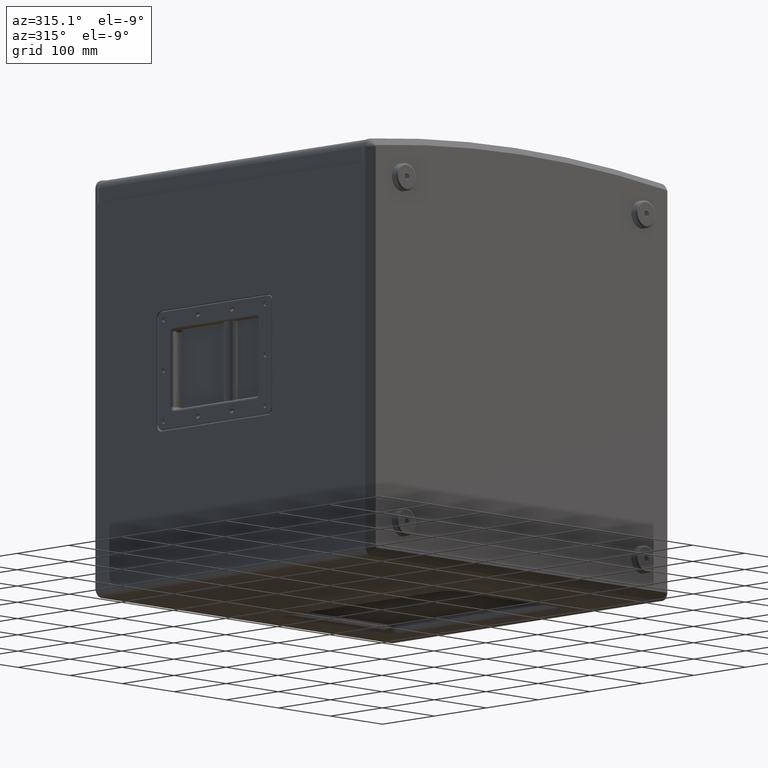
[diagram: clean part render]
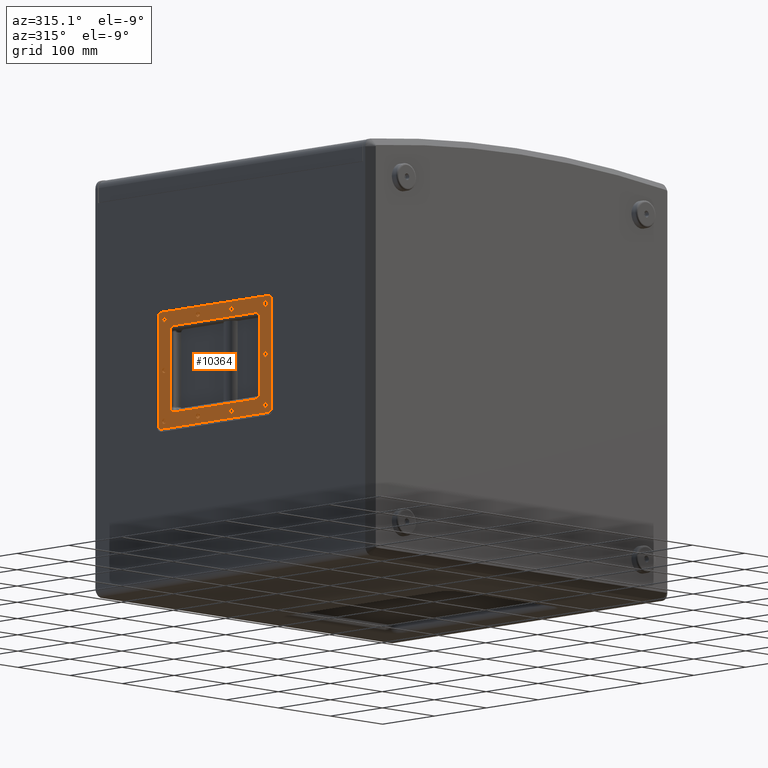
[diagram: same view with one face highlighted and labeled with its STEP entity id]
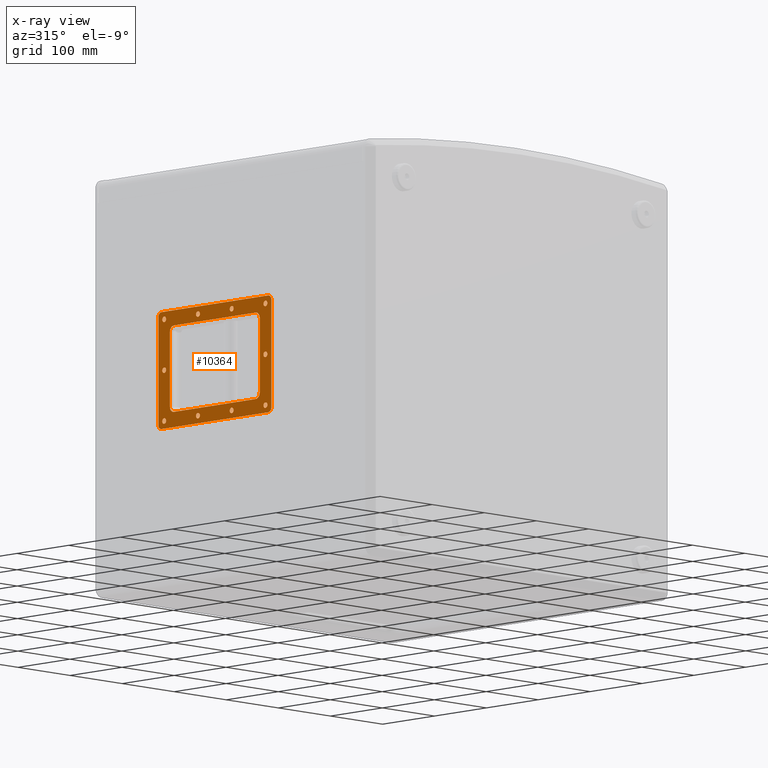
[diagram: x-ray of the same camera — body ghosted, the highlighted face saturated]
A machine part, auxiliary view. The second image highlights one B-rep face of the part: STEP entity #10364.
The next image is the same camera in x-ray: the body ghosted, the highlighted face saturated — about 0% of this face is hidden behind the body in this view.
In plain terms, the highlighted planar face has unit normal (-1, 0, 0).
Its self-contained STEP definition (entity closure, byte-faithful):
#211 = CIRCLE ( 'NONE', #23927, 3.750000000000058620 ) ;
#403 = ORIENTED_EDGE ( 'NONE', *, *, #12538, .T. ) ;
#418 = FACE_BOUND ( 'NONE', #37160, .T. ) ;
#508 = EDGE_LOOP ( 'NONE', ( #35665, #2250 ) ) ;
#536 = ORIENTED_EDGE ( 'NONE', *, *, #16903, .T. ) ;
#586 = VERTEX_POINT ( 'NONE', #39665 ) ;
#722 = DIRECTION ( 'NONE',  ( 1.000000000000000000, -0.0000000000000000000, -0.0000000000000000000 ) ) ;
#898 = CIRCLE ( 'NONE', #13058, 6.499999999999992006 ) ;
#1053 = VERTEX_POINT ( 'NONE', #38512 ) ;
#1125 = VERTEX_POINT ( 'NONE', #25715 ) ;
#1208 = EDGE_LOOP ( 'NONE', ( #35267, #11306 ) ) ;
#1553 = CARTESIAN_POINT ( 'NONE',  ( -290.0000000000000568, 62.50000000000002842, 70.00000000000001421 ) ) ;
#1771 = ORIENTED_EDGE ( 'NONE', *, *, #10657, .T. ) ;
#2107 = DIRECTION ( 'NONE',  ( 0.0000000000000000000, 0.0000000000000000000, 1.000000000000000000 ) ) ;
#2190 = AXIS2_PLACEMENT_3D ( 'NONE', #10365, #7200, #20508 ) ;
#2250 = ORIENTED_EDGE ( 'NONE', *, *, #32462, .T. ) ;
#2263 = EDGE_CURVE ( 'NONE', #27710, #7229, #898, .T. ) ;
#2310 = CARTESIAN_POINT ( 'NONE',  ( -290.0000000000000568, 127.5000000000000284, -5.970153145843347150E-15 ) ) ;
#2323 = CARTESIAN_POINT ( 'NONE',  ( -290.0000000000000568, 62.50000000000002842, 66.24999999999997158 ) ) ;
#2554 = EDGE_CURVE ( 'NONE', #38324, #22013, #29662, .T. ) ;
#2602 = AXIS2_PLACEMENT_3D ( 'NONE', #35365, #31738, #32161 ) ;
#2633 = EDGE_CURVE ( 'NONE', #16994, #8708, #39189, .T. ) ;
#3073 = DIRECTION ( 'NONE',  ( 1.000000000000000000, -0.0000000000000000000, -0.0000000000000000000 ) ) ;
#3128 = CARTESIAN_POINT ( 'NONE',  ( -290.0000000000000568, -67.49999999999997158, 70.00000000000001421 ) ) ;
#3223 = DIRECTION ( 'NONE',  ( 1.000000000000000000, -0.0000000000000000000, -0.0000000000000000000 ) ) ;
#3282 = CIRCLE ( 'NONE', #18846, 8.000000000000000000 ) ;
#3341 = CIRCLE ( 'NONE', #41347, 3.750000000000031086 ) ;
#3357 = DIRECTION ( 'NONE',  ( 0.0000000000000000000, 0.0000000000000000000, 1.000000000000000000 ) ) ;
#3898 = EDGE_LOOP ( 'NONE', ( #25933, #34236 ) ) ;
#4037 = DIRECTION ( 'NONE',  ( 0.0000000000000000000, 0.0000000000000000000, 1.000000000000000000 ) ) ;
#4294 = VERTEX_POINT ( 'NONE', #19420 ) ;
#4379 = EDGE_CURVE ( 'NONE', #4294, #24191, #3341, .T. ) ;
#4487 = VECTOR ( 'NONE', #36305, 1000.000000000000000 ) ;
#4746 = EDGE_CURVE ( 'NONE', #17588, #20660, #3282, .T. ) ;
#4914 = CIRCLE ( 'NONE', #40852, 3.750000000000058620 ) ;
#4932 = CARTESIAN_POINT ( 'NONE',  ( -290.0000000000000568, 108.5000000000000426, -59.50000000000000000 ) ) ;
#4935 = CIRCLE ( 'NONE', #7652, 8.000000000000000000 ) ;
#5082 = DIRECTION ( 'NONE',  ( 0.0000000000000000000, 0.0000000000000000000, 1.000000000000000000 ) ) ;
#5178 = CARTESIAN_POINT ( 'NONE',  ( -290.0000000000000568, -48.49999999999995026, 59.50000000000000000 ) ) ;
#5219 = DIRECTION ( 'NONE',  ( 0.0000000000000000000, 0.0000000000000000000, 1.000000000000000000 ) ) ;
#5348 = DIRECTION ( 'NONE',  ( 0.0000000000000000000, 0.0000000000000000000, 1.000000000000000000 ) ) ;
#5425 = VERTEX_POINT ( 'NONE', #33462 ) ;
#5856 = EDGE_CURVE ( 'NONE', #14907, #6458, #21559, .T. ) ;
#5863 = EDGE_LOOP ( 'NONE', ( #536, #17411 ) ) ;
#6153 = CARTESIAN_POINT ( 'NONE',  ( -290.0000000000000568, 138.9999999999999716, -74.00000000000001421 ) ) ;
#6174 = FACE_BOUND ( 'NONE', #12285, .T. ) ;
#6219 = CARTESIAN_POINT ( 'NONE',  ( -290.0000000000000568, -72.49999999999995737, 80.50000000000000000 ) ) ;
#6242 = CARTESIAN_POINT ( 'NONE',  ( -290.0000000000000568, -67.49999999999997158, -70.00000000000001421 ) ) ;
#6248 = DIRECTION ( 'NONE',  ( 0.0000000000000000000, 0.0000000000000000000, 1.000000000000000000 ) ) ;
#6261 = ORIENTED_EDGE ( 'NONE', *, *, #16700, .T. ) ;
#6386 = FACE_BOUND ( 'NONE', #17727, .T. ) ;
#6458 = VERTEX_POINT ( 'NONE', #18154 ) ;
#6548 = CARTESIAN_POINT ( 'NONE',  ( -290.0000000000000568, 30.00000000000002132, -59.50000000000000000 ) ) ;
#6842 = CARTESIAN_POINT ( 'NONE',  ( -290.0000000000000568, -67.49999999999997158, -70.00000000000001421 ) ) ;
#7200 = DIRECTION ( 'NONE',  ( 1.000000000000000000, -0.0000000000000000000, -0.0000000000000000000 ) ) ;
#7229 = VERTEX_POINT ( 'NONE', #6219 ) ;
#7244 = VERTEX_POINT ( 'NONE', #28704 ) ;
#7255 = CARTESIAN_POINT ( 'NONE',  ( -290.0000000000000568, -72.49999999999995737, 74.00000000000001421 ) ) ;
#7258 = CARTESIAN_POINT ( 'NONE',  ( -290.0000000000000568, 127.5000000000000284, -70.00000000000001421 ) ) ;
#7286 = CIRCLE ( 'NONE', #23505, 8.000000000000000000 ) ;
#7320 = CARTESIAN_POINT ( 'NONE',  ( -290.0000000000000568, -72.49999999999995737, -80.49999999999998579 ) ) ;
#7514 = DIRECTION ( 'NONE',  ( 1.000000000000000000, -0.0000000000000000000, -0.0000000000000000000 ) ) ;
#7574 = ORIENTED_EDGE ( 'NONE', *, *, #35023, .T. ) ;
#7652 = AXIS2_PLACEMENT_3D ( 'NONE', #7707, #29936, #33582 ) ;
#7707 = CARTESIAN_POINT ( 'NONE',  ( -290.0000000000000568, -48.49999999999995026, -51.50000000000000711 ) ) ;
#7926 = CIRCLE ( 'NONE', #13314, 3.750000000000031086 ) ;
#8003 = DIRECTION ( 'NONE',  ( 1.000000000000000000, -0.0000000000000000000, -0.0000000000000000000 ) ) ;
#8050 = AXIS2_PLACEMENT_3D ( 'NONE', #20492, #24561, #2107 ) ;
#8375 = EDGE_CURVE ( 'NONE', #31284, #16897, #30999, .T. ) ;
#8446 = DIRECTION ( 'NONE',  ( 0.0000000000000000000, 0.0000000000000000000, 1.000000000000000000 ) ) ;
#8708 = VERTEX_POINT ( 'NONE', #28173 ) ;
#8759 = LINE ( 'NONE', #5178, #18589 ) ;
#8808 = CARTESIAN_POINT ( 'NONE',  ( -290.0000000000000568, 62.50000000000002842, -73.75000000000007105 ) ) ;
#9078 = CARTESIAN_POINT ( 'NONE',  ( -290.0000000000000568, -2.499999999999981348, 70.00000000000001421 ) ) ;
#9154 = PLANE ( 'NONE',  #10295 ) ;
#9190 = CARTESIAN_POINT ( 'NONE',  ( -290.0000000000000568, 62.50000000000002842, -70.00000000000001421 ) ) ;
#9323 = EDGE_CURVE ( 'NONE', #13210, #17825, #37963, .T. ) ;
#9348 = CARTESIAN_POINT ( 'NONE',  ( -290.0000000000000568, 127.5000000000000284, 70.00000000000001421 ) ) ;
#9849 = DIRECTION ( 'NONE',  ( 0.0000000000000000000, 0.0000000000000000000, 1.000000000000000000 ) ) ;
#9955 = FACE_BOUND ( 'NONE', #1208, .T. ) ;
#10295 = AXIS2_PLACEMENT_3D ( 'NONE', #16704, #30092, #4037 ) ;
#10364 = ADVANCED_FACE ( 'NONE', ( #42072, #35252, #22241, #25660, #9955, #35673, #18867, #6386, #6174, #31839, #19260, #418 ), #9154, .T. ) ;
#10365 = CARTESIAN_POINT ( 'NONE',  ( -290.0000000000000568, -67.49999999999997158, -5.970153145843347150E-15 ) ) ;
#10448 = ORIENTED_EDGE ( 'NONE', *, *, #22637, .T. ) ;
#10477 = DIRECTION ( 'NONE',  ( 0.0000000000000000000, 0.0000000000000000000, 1.000000000000000000 ) ) ;
#10601 = VERTEX_POINT ( 'NONE', #29727 ) ;
#10657 = EDGE_CURVE ( 'NONE', #34723, #16994, #29970, .T. ) ;
#10851 = DIRECTION ( 'NONE',  ( 0.0000000000000000000, 0.0000000000000000000, 1.000000000000000000 ) ) ;
#11306 = ORIENTED_EDGE ( 'NONE', *, *, #25426, .T. ) ;
#11496 = CARTESIAN_POINT ( 'NONE',  ( -290.0000000000000568, 108.5000000000000426, -51.50000000000000711 ) ) ;
#11746 = DIRECTION ( 'NONE',  ( 0.0000000000000000000, -1.000000000000000000, 0.0000000000000000000 ) ) ;
#12285 = EDGE_LOOP ( 'NONE', ( #31003, #32738 ) ) ;
#12340 = ORIENTED_EDGE ( 'NONE', *, *, #8375, .T. ) ;
#12346 = AXIS2_PLACEMENT_3D ( 'NONE', #38187, #41595, #5082 ) ;
#12456 = DIRECTION ( 'NONE',  ( 0.0000000000000000000, 0.0000000000000000000, 1.000000000000000000 ) ) ;
#12462 = CIRCLE ( 'NONE', #41663, 8.000000000000000000 ) ;
#12538 = EDGE_CURVE ( 'NONE', #7244, #31284, #12462, .T. ) ;
#12687 = LINE ( 'NONE', #6548, #26501 ) ;
#12896 = DIRECTION ( 'NONE',  ( 0.0000000000000000000, 0.0000000000000000000, -1.000000000000000000 ) ) ;
#13058 = AXIS2_PLACEMENT_3D ( 'NONE', #7255, #29506, #10851 ) ;
#13164 = CARTESIAN_POINT ( 'NONE',  ( -290.0000000000000568, 62.50000000000002842, 70.00000000000001421 ) ) ;
#13210 = VERTEX_POINT ( 'NONE', #8808 ) ;
#13314 = AXIS2_PLACEMENT_3D ( 'NONE', #7258, #13602, #29511 ) ;
#13399 = ORIENTED_EDGE ( 'NONE', *, *, #4746, .T. ) ;
#13602 = DIRECTION ( 'NONE',  ( 1.000000000000000000, -0.0000000000000000000, -0.0000000000000000000 ) ) ;
#13615 = ORIENTED_EDGE ( 'NONE', *, *, #21747, .T. ) ;
#13669 = DIRECTION ( 'NONE',  ( 0.0000000000000000000, -1.000000000000000000, 0.0000000000000000000 ) ) ;
#13674 = CARTESIAN_POINT ( 'NONE',  ( -290.0000000000000568, -2.499999999999980904, -73.75000000000007105 ) ) ;
#13749 = VERTEX_POINT ( 'NONE', #19092 ) ;
#13802 = DIRECTION ( 'NONE',  ( 0.0000000000000000000, 0.0000000000000000000, 1.000000000000000000 ) ) ;
#14371 = CIRCLE ( 'NONE', #12346, 3.750000000000031086 ) ;
#14535 = CARTESIAN_POINT ( 'NONE',  ( -290.0000000000000568, 127.5000000000000284, 70.00000000000001421 ) ) ;
#14568 = CARTESIAN_POINT ( 'NONE',  ( -290.0000000000000568, -67.49999999999997158, 70.00000000000001421 ) ) ;
#14595 = AXIS2_PLACEMENT_3D ( 'NONE', #36268, #19414, #3357 ) ;
#14895 = CARTESIAN_POINT ( 'NONE',  ( -290.0000000000000568, -56.49999999999995737, 51.50000000000001421 ) ) ;
#14907 = VERTEX_POINT ( 'NONE', #31988 ) ;
#15138 = CARTESIAN_POINT ( 'NONE',  ( -290.0000000000000568, -2.499999999999980904, 66.24999999999997158 ) ) ;
#15155 = DIRECTION ( 'NONE',  ( 0.0000000000000000000, 0.0000000000000000000, 1.000000000000000000 ) ) ;
#15357 = CARTESIAN_POINT ( 'NONE',  ( -290.0000000000000568, 62.50000000000002842, -70.00000000000001421 ) ) ;
#15400 = CARTESIAN_POINT ( 'NONE',  ( -290.0000000000000568, 108.5000000000000426, 51.50000000000001421 ) ) ;
#15853 = EDGE_CURVE ( 'NONE', #17825, #13210, #29748, .T. ) ;
#15913 = CARTESIAN_POINT ( 'NONE',  ( -290.0000000000000568, -48.49999999999995026, 51.50000000000001421 ) ) ;
#16003 = DIRECTION ( 'NONE',  ( 0.0000000000000000000, 0.0000000000000000000, 1.000000000000000000 ) ) ;
#16568 = AXIS2_PLACEMENT_3D ( 'NONE', #17457, #7514, #36192 ) ;
#16700 = EDGE_CURVE ( 'NONE', #10601, #17588, #12687, .T. ) ;
#16704 = CARTESIAN_POINT ( 'NONE',  ( -290.0000000000000568, 30.00000000000002132, 0.0000000000000000000 ) ) ;
#16897 = VERTEX_POINT ( 'NONE', #20071 ) ;
#16903 = EDGE_CURVE ( 'NONE', #13749, #38502, #25194, .T. ) ;
#16994 = VERTEX_POINT ( 'NONE', #34140 ) ;
#17101 = CARTESIAN_POINT ( 'NONE',  ( -290.0000000000000568, 116.5000000000000426, 51.50000000000001421 ) ) ;
#17411 = ORIENTED_EDGE ( 'NONE', *, *, #34509, .T. ) ;
#17421 = DIRECTION ( 'NONE',  ( 0.0000000000000000000, 0.0000000000000000000, 1.000000000000000000 ) ) ;
#17457 = CARTESIAN_POINT ( 'NONE',  ( -290.0000000000000568, 127.5000000000000284, -70.00000000000001421 ) ) ;
#17588 = VERTEX_POINT ( 'NONE', #4932 ) ;
#17727 = EDGE_LOOP ( 'NONE', ( #28728, #38914 ) ) ;
#17797 = CIRCLE ( 'NONE', #19780, 3.750000000000031086 ) ;
#17825 = VERTEX_POINT ( 'NONE', #32050 ) ;
#17884 = CARTESIAN_POINT ( 'NONE',  ( -290.0000000000000568, 127.5000000000000284, 66.24999999999998579 ) ) ;
#18139 = AXIS2_PLACEMENT_3D ( 'NONE', #28738, #22751, #9849 ) ;
#18154 = CARTESIAN_POINT ( 'NONE',  ( -290.0000000000000568, -67.49999999999997158, -73.75000000000005684 ) ) ;
#18384 = VECTOR ( 'NONE', #36473, 1000.000000000000000 ) ;
#18386 = DIRECTION ( 'NONE',  ( 1.000000000000000000, -0.0000000000000000000, -0.0000000000000000000 ) ) ;
#18589 = VECTOR ( 'NONE', #11746, 1000.000000000000000 ) ;
#18597 = AXIS2_PLACEMENT_3D ( 'NONE', #9348, #29057, #41662 ) ;
#18843 = AXIS2_PLACEMENT_3D ( 'NONE', #6842, #38716, #19112 ) ;
#18846 = AXIS2_PLACEMENT_3D ( 'NONE', #11496, #31433, #5348 ) ;
#18867 = FACE_BOUND ( 'NONE', #34694, .T. ) ;
#19092 = CARTESIAN_POINT ( 'NONE',  ( -290.0000000000000568, -67.49999999999997158, 3.750000000000024869 ) ) ;
#19112 = DIRECTION ( 'NONE',  ( 0.0000000000000000000, 0.0000000000000000000, 1.000000000000000000 ) ) ;
#19260 = FACE_BOUND ( 'NONE', #5863, .T. ) ;
#19305 = CIRCLE ( 'NONE', #14595, 6.499999999999977796 ) ;
#19414 = DIRECTION ( 'NONE',  ( -1.000000000000000000, 0.0000000000000000000, 0.0000000000000000000 ) ) ;
#19420 = CARTESIAN_POINT ( 'NONE',  ( -290.0000000000000568, 127.5000000000000284, -3.750000000000037303 ) ) ;
#19461 = VECTOR ( 'NONE', #24187, 1000.000000000000000 ) ;
#19524 = DIRECTION ( 'NONE',  ( 0.0000000000000000000, 0.0000000000000000000, 1.000000000000000000 ) ) ;
#19562 = AXIS2_PLACEMENT_3D ( 'NONE', #9190, #22087, #22286 ) ;
#19696 = DIRECTION ( 'NONE',  ( 1.000000000000000000, -0.0000000000000000000, -0.0000000000000000000 ) ) ;
#19780 = AXIS2_PLACEMENT_3D ( 'NONE', #14535, #31306, #5219 ) ;
#19913 = CIRCLE ( 'NONE', #18597, 3.750000000000031086 ) ;
#20021 = EDGE_CURVE ( 'NONE', #22013, #38324, #40111, .T. ) ;
#20071 = CARTESIAN_POINT ( 'NONE',  ( -290.0000000000000568, -56.49999999999995737, -51.50000000000000711 ) ) ;
#20374 = EDGE_CURVE ( 'NONE', #1053, #24657, #27047, .T. ) ;
#20386 = VERTEX_POINT ( 'NONE', #2323 ) ;
#20462 = CARTESIAN_POINT ( 'NONE',  ( -290.0000000000000568, 127.5000000000000284, 3.750000000000024869 ) ) ;
#20492 = CARTESIAN_POINT ( 'NONE',  ( -290.0000000000000568, -72.49999999999995737, -74.00000000000001421 ) ) ;
#20508 = DIRECTION ( 'NONE',  ( 0.0000000000000000000, 0.0000000000000000000, 1.000000000000000000 ) ) ;
#20617 = CARTESIAN_POINT ( 'NONE',  ( -290.0000000000000568, 62.50000000000002842, 73.75000000000007105 ) ) ;
#20660 = VERTEX_POINT ( 'NONE', #20869 ) ;
#20778 = CARTESIAN_POINT ( 'NONE',  ( -290.0000000000000568, 132.5000000000000000, -74.00000000000001421 ) ) ;
#20869 = CARTESIAN_POINT ( 'NONE',  ( -290.0000000000000568, 116.5000000000000426, -51.50000000000000711 ) ) ;
#21423 = CARTESIAN_POINT ( 'NONE',  ( -290.0000000000000568, 127.5000000000000284, 73.75000000000005684 ) ) ;
#21538 = VECTOR ( 'NONE', #13669, 1000.000000000000000 ) ;
#21559 = CIRCLE ( 'NONE', #18843, 3.750000000000031086 ) ;
#21747 = EDGE_CURVE ( 'NONE', #20660, #1125, #33473, .T. ) ;
#22013 = VERTEX_POINT ( 'NONE', #13674 ) ;
#22087 = DIRECTION ( 'NONE',  ( 1.000000000000000000, -0.0000000000000000000, -0.0000000000000000000 ) ) ;
#22210 = VERTEX_POINT ( 'NONE', #41521 ) ;
#22241 = FACE_BOUND ( 'NONE', #3898, .T. ) ;
#22280 = ORIENTED_EDGE ( 'NONE', *, *, #32067, .T. ) ;
#22286 = DIRECTION ( 'NONE',  ( 0.0000000000000000000, 0.0000000000000000000, 1.000000000000000000 ) ) ;
#22327 = EDGE_CURVE ( 'NONE', #16897, #10601, #4935, .T. ) ;
#22637 = EDGE_CURVE ( 'NONE', #22210, #34723, #42039, .T. ) ;
#22751 = DIRECTION ( 'NONE',  ( 1.000000000000000000, -0.0000000000000000000, -0.0000000000000000000 ) ) ;
#22947 = EDGE_CURVE ( 'NONE', #26919, #33333, #25289, .T. ) ;
#23124 = VERTEX_POINT ( 'NONE', #33431 ) ;
#23505 = AXIS2_PLACEMENT_3D ( 'NONE', #15400, #18386, #27728 ) ;
#23544 = ORIENTED_EDGE ( 'NONE', *, *, #28248, .T. ) ;
#23562 = ORIENTED_EDGE ( 'NONE', *, *, #2263, .T. ) ;
#23588 = DIRECTION ( 'NONE',  ( 1.000000000000000000, -0.0000000000000000000, -0.0000000000000000000 ) ) ;
#23669 = CARTESIAN_POINT ( 'NONE',  ( -290.0000000000000568, -78.99999999999995737, 74.00000000000001421 ) ) ;
#23927 = AXIS2_PLACEMENT_3D ( 'NONE', #1553, #23588, #17421 ) ;
#24187 = DIRECTION ( 'NONE',  ( -0.0000000000000000000, -0.0000000000000000000, -1.000000000000000000 ) ) ;
#24191 = VERTEX_POINT ( 'NONE', #20462 ) ;
#24198 = EDGE_CURVE ( 'NONE', #33333, #26919, #41682, .T. ) ;
#24202 = ORIENTED_EDGE ( 'NONE', *, *, #39660, .T. ) ;
#24453 = CARTESIAN_POINT ( 'NONE',  ( -290.0000000000000568, 108.5000000000000426, 59.50000000000001421 ) ) ;
#24561 = DIRECTION ( 'NONE',  ( -1.000000000000000000, 0.0000000000000000000, 0.0000000000000000000 ) ) ;
#24657 = VERTEX_POINT ( 'NONE', #15138 ) ;
#24987 = EDGE_CURVE ( 'NONE', #23124, #22210, #19305, .T. ) ;
#25194 = CIRCLE ( 'NONE', #2190, 3.750000000000031086 ) ;
#25254 = VECTOR ( 'NONE', #6248, 1000.000000000000000 ) ;
#25289 = CIRCLE ( 'NONE', #31430, 3.750000000000031086 ) ;
#25335 = CARTESIAN_POINT ( 'NONE',  ( -290.0000000000000568, -78.99999999999995737, 0.0000000000000000000 ) ) ;
#25426 = EDGE_CURVE ( 'NONE', #6458, #14907, #25465, .T. ) ;
#25465 = CIRCLE ( 'NONE', #36350, 3.750000000000031086 ) ;
#25660 = FACE_BOUND ( 'NONE', #30651, .T. ) ;
#25697 = AXIS2_PLACEMENT_3D ( 'NONE', #15357, #41320, #15155 ) ;
#25715 = CARTESIAN_POINT ( 'NONE',  ( -290.0000000000000568, 116.5000000000000426, 51.50000000000001421 ) ) ;
#25809 = CARTESIAN_POINT ( 'NONE',  ( -290.0000000000000568, -67.49999999999997158, -3.750000000000037303 ) ) ;
#25894 = DIRECTION ( 'NONE',  ( 0.0000000000000000000, 0.0000000000000000000, 1.000000000000000000 ) ) ;
#25933 = ORIENTED_EDGE ( 'NONE', *, *, #38726, .T. ) ;
#26067 = CARTESIAN_POINT ( 'NONE',  ( -290.0000000000000568, 30.00000000000002132, 80.49999999999998579 ) ) ;
#26095 = DIRECTION ( 'NONE',  ( 0.0000000000000000000, 0.0000000000000000000, 1.000000000000000000 ) ) ;
#26501 = VECTOR ( 'NONE', #29413, 1000.000000000000000 ) ;
#26571 = VECTOR ( 'NONE', #12896, 1000.000000000000000 ) ;
#26919 = VERTEX_POINT ( 'NONE', #27940 ) ;
#27047 = CIRCLE ( 'NONE', #38040, 3.750000000000058620 ) ;
#27080 = VERTEX_POINT ( 'NONE', #41788 ) ;
#27493 = ORIENTED_EDGE ( 'NONE', *, *, #38815, .T. ) ;
#27710 = VERTEX_POINT ( 'NONE', #23669 ) ;
#27728 = DIRECTION ( 'NONE',  ( 0.0000000000000000000, 0.0000000000000000000, 1.000000000000000000 ) ) ;
#27940 = CARTESIAN_POINT ( 'NONE',  ( -290.0000000000000568, -67.49999999999997158, 66.24999999999998579 ) ) ;
#28173 = CARTESIAN_POINT ( 'NONE',  ( -290.0000000000000568, -72.49999999999995737, -80.49999999999998579 ) ) ;
#28248 = EDGE_CURVE ( 'NONE', #24191, #4294, #14371, .T. ) ;
#28448 = CARTESIAN_POINT ( 'NONE',  ( -290.0000000000000568, -2.499999999999981348, -66.24999999999997158 ) ) ;
#28704 = CARTESIAN_POINT ( 'NONE',  ( -290.0000000000000568, -48.49999999999995026, 59.50000000000001421 ) ) ;
#28728 = ORIENTED_EDGE ( 'NONE', *, *, #20374, .T. ) ;
#28738 = CARTESIAN_POINT ( 'NONE',  ( -290.0000000000000568, -67.49999999999997158, -5.970153145843347150E-15 ) ) ;
#28768 = EDGE_CURVE ( 'NONE', #40687, #20386, #4914, .T. ) ;
#29057 = DIRECTION ( 'NONE',  ( 1.000000000000000000, -0.0000000000000000000, -0.0000000000000000000 ) ) ;
#29137 = LINE ( 'NONE', #25335, #25254 ) ;
#29413 = DIRECTION ( 'NONE',  ( -0.0000000000000000000, 1.000000000000000000, -0.0000000000000000000 ) ) ;
#29506 = DIRECTION ( 'NONE',  ( -1.000000000000000000, 0.0000000000000000000, 0.0000000000000000000 ) ) ;
#29511 = DIRECTION ( 'NONE',  ( 0.0000000000000000000, 0.0000000000000000000, 1.000000000000000000 ) ) ;
#29662 = CIRCLE ( 'NONE', #2602, 3.750000000000058620 ) ;
#29727 = CARTESIAN_POINT ( 'NONE',  ( -290.0000000000000568, -48.49999999999995026, -59.50000000000000000 ) ) ;
#29748 = CIRCLE ( 'NONE', #25697, 3.750000000000058620 ) ;
#29901 = ORIENTED_EDGE ( 'NONE', *, *, #20021, .T. ) ;
#29925 = DIRECTION ( 'NONE',  ( 0.0000000000000000000, 0.0000000000000000000, 1.000000000000000000 ) ) ;
#29936 = DIRECTION ( 'NONE',  ( 1.000000000000000000, -0.0000000000000000000, -0.0000000000000000000 ) ) ;
#29970 = CIRCLE ( 'NONE', #38198, 6.499999999999992006 ) ;
#30092 = DIRECTION ( 'NONE',  ( -1.000000000000000000, 0.0000000000000000000, 0.0000000000000000000 ) ) ;
#30378 = ORIENTED_EDGE ( 'NONE', *, *, #15853, .T. ) ;
#30651 = EDGE_LOOP ( 'NONE', ( #38416, #35297 ) ) ;
#30822 = ORIENTED_EDGE ( 'NONE', *, *, #2554, .T. ) ;
#30999 = LINE ( 'NONE', #37616, #19461 ) ;
#31003 = ORIENTED_EDGE ( 'NONE', *, *, #28768, .T. ) ;
#31284 = VERTEX_POINT ( 'NONE', #14895 ) ;
#31306 = DIRECTION ( 'NONE',  ( 1.000000000000000000, -0.0000000000000000000, -0.0000000000000000000 ) ) ;
#31383 = ORIENTED_EDGE ( 'NONE', *, *, #2633, .T. ) ;
#31392 = VERTEX_POINT ( 'NONE', #24453 ) ;
#31430 = AXIS2_PLACEMENT_3D ( 'NONE', #3128, #39004, #16003 ) ;
#31433 = DIRECTION ( 'NONE',  ( 1.000000000000000000, -0.0000000000000000000, -0.0000000000000000000 ) ) ;
#31529 = CIRCLE ( 'NONE', #16568, 3.750000000000031086 ) ;
#31704 = EDGE_CURVE ( 'NONE', #586, #5425, #31529, .T. ) ;
#31738 = DIRECTION ( 'NONE',  ( 1.000000000000000000, -0.0000000000000000000, -0.0000000000000000000 ) ) ;
#31833 = ORIENTED_EDGE ( 'NONE', *, *, #22327, .T. ) ;
#31839 = FACE_BOUND ( 'NONE', #37757, .T. ) ;
#31988 = CARTESIAN_POINT ( 'NONE',  ( -290.0000000000000568, -67.49999999999997158, -66.24999999999998579 ) ) ;
#32050 = CARTESIAN_POINT ( 'NONE',  ( -290.0000000000000568, 62.50000000000002842, -66.24999999999997158 ) ) ;
#32067 = EDGE_CURVE ( 'NONE', #7229, #23124, #35883, .T. ) ;
#32161 = DIRECTION ( 'NONE',  ( 0.0000000000000000000, 0.0000000000000000000, 1.000000000000000000 ) ) ;
#32462 = EDGE_CURVE ( 'NONE', #5425, #586, #7926, .T. ) ;
#32622 = CARTESIAN_POINT ( 'NONE',  ( -290.0000000000000568, 138.9999999999999716, -74.00000000000001421 ) ) ;
#32707 = ORIENTED_EDGE ( 'NONE', *, *, #9323, .T. ) ;
#32738 = ORIENTED_EDGE ( 'NONE', *, *, #38224, .T. ) ;
#32803 = AXIS2_PLACEMENT_3D ( 'NONE', #14568, #8003, #33029 ) ;
#33029 = DIRECTION ( 'NONE',  ( 0.0000000000000000000, 0.0000000000000000000, 1.000000000000000000 ) ) ;
#33228 = CIRCLE ( 'NONE', #37331, 3.750000000000058620 ) ;
#33333 = VERTEX_POINT ( 'NONE', #41968 ) ;
#33431 = CARTESIAN_POINT ( 'NONE',  ( -290.0000000000000568, 132.5000000000000000, 80.49999999999998579 ) ) ;
#33462 = CARTESIAN_POINT ( 'NONE',  ( -290.0000000000000568, 127.5000000000000284, -73.75000000000005684 ) ) ;
#33473 = LINE ( 'NONE', #17101, #18384 ) ;
#33582 = DIRECTION ( 'NONE',  ( 0.0000000000000000000, 0.0000000000000000000, 1.000000000000000000 ) ) ;
#33608 = CARTESIAN_POINT ( 'NONE',  ( -290.0000000000000568, -2.499999999999981348, 70.00000000000001421 ) ) ;
#33776 = DIRECTION ( 'NONE',  ( -1.000000000000000000, 0.0000000000000000000, 0.0000000000000000000 ) ) ;
#34140 = CARTESIAN_POINT ( 'NONE',  ( -290.0000000000000568, 132.5000000000000000, -80.50000000000000000 ) ) ;
#34155 = EDGE_CURVE ( 'NONE', #1125, #31392, #7286, .T. ) ;
#34236 = ORIENTED_EDGE ( 'NONE', *, *, #41865, .T. ) ;
#34509 = EDGE_CURVE ( 'NONE', #38502, #13749, #36484, .T. ) ;
#34694 = EDGE_LOOP ( 'NONE', ( #30822, #29901 ) ) ;
#34723 = VERTEX_POINT ( 'NONE', #6153 ) ;
#35023 = EDGE_CURVE ( 'NONE', #8708, #27080, #36549, .T. ) ;
#35252 = FACE_BOUND ( 'NONE', #508, .T. ) ;
#35267 = ORIENTED_EDGE ( 'NONE', *, *, #5856, .T. ) ;
#35297 = ORIENTED_EDGE ( 'NONE', *, *, #22947, .T. ) ;
#35365 = CARTESIAN_POINT ( 'NONE',  ( -290.0000000000000568, -2.499999999999981348, -70.00000000000001421 ) ) ;
#35665 = ORIENTED_EDGE ( 'NONE', *, *, #31704, .T. ) ;
#35673 = FACE_BOUND ( 'NONE', #39598, .T. ) ;
#35883 = LINE ( 'NONE', #26067, #4487 ) ;
#35923 = CARTESIAN_POINT ( 'NONE',  ( -290.0000000000000568, -2.499999999999981348, -70.00000000000001421 ) ) ;
#36192 = DIRECTION ( 'NONE',  ( 0.0000000000000000000, 0.0000000000000000000, 1.000000000000000000 ) ) ;
#36268 = CARTESIAN_POINT ( 'NONE',  ( -290.0000000000000568, 132.5000000000000000, 74.00000000000001421 ) ) ;
#36305 = DIRECTION ( 'NONE',  ( 0.0000000000000000000, 1.000000000000000000, 0.0000000000000000000 ) ) ;
#36350 = AXIS2_PLACEMENT_3D ( 'NONE', #6242, #3073, #19524 ) ;
#36473 = DIRECTION ( 'NONE',  ( 0.0000000000000000000, 0.0000000000000000000, 1.000000000000000000 ) ) ;
#36484 = CIRCLE ( 'NONE', #18139, 3.750000000000031086 ) ;
#36549 = CIRCLE ( 'NONE', #8050, 6.499999999999977796 ) ;
#36697 = EDGE_CURVE ( 'NONE', #24657, #1053, #33228, .T. ) ;
#37054 = ORIENTED_EDGE ( 'NONE', *, *, #4379, .T. ) ;
#37160 = EDGE_LOOP ( 'NONE', ( #40398, #24202, #403, #12340, #31833, #6261, #13399, #13615 ) ) ;
#37331 = AXIS2_PLACEMENT_3D ( 'NONE', #33608, #722, #10477 ) ;
#37616 = CARTESIAN_POINT ( 'NONE',  ( -290.0000000000000568, -56.49999999999995737, -51.50000000000000711 ) ) ;
#37668 = VERTEX_POINT ( 'NONE', #21423 ) ;
#37729 = ORIENTED_EDGE ( 'NONE', *, *, #24987, .T. ) ;
#37757 = EDGE_LOOP ( 'NONE', ( #23544, #37054 ) ) ;
#37963 = CIRCLE ( 'NONE', #19562, 3.750000000000058620 ) ;
#38040 = AXIS2_PLACEMENT_3D ( 'NONE', #9078, #38180, #12456 ) ;
#38063 = AXIS2_PLACEMENT_3D ( 'NONE', #35923, #19696, #13802 ) ;
#38180 = DIRECTION ( 'NONE',  ( 1.000000000000000000, -0.0000000000000000000, -0.0000000000000000000 ) ) ;
#38187 = CARTESIAN_POINT ( 'NONE',  ( -290.0000000000000568, 127.5000000000000284, -5.970153145843347150E-15 ) ) ;
#38198 = AXIS2_PLACEMENT_3D ( 'NONE', #20778, #33776, #29925 ) ;
#38224 = EDGE_CURVE ( 'NONE', #20386, #40687, #211, .T. ) ;
#38324 = VERTEX_POINT ( 'NONE', #28448 ) ;
#38416 = ORIENTED_EDGE ( 'NONE', *, *, #24198, .T. ) ;
#38502 = VERTEX_POINT ( 'NONE', #25809 ) ;
#38512 = CARTESIAN_POINT ( 'NONE',  ( -290.0000000000000568, -2.499999999999981348, 73.75000000000007105 ) ) ;
#38687 = DIRECTION ( 'NONE',  ( 1.000000000000000000, -0.0000000000000000000, -0.0000000000000000000 ) ) ;
#38716 = DIRECTION ( 'NONE',  ( 1.000000000000000000, -0.0000000000000000000, -0.0000000000000000000 ) ) ;
#38726 = EDGE_CURVE ( 'NONE', #37668, #41516, #17797, .T. ) ;
#38815 = EDGE_CURVE ( 'NONE', #27080, #27710, #29137, .T. ) ;
#38914 = ORIENTED_EDGE ( 'NONE', *, *, #36697, .T. ) ;
#39004 = DIRECTION ( 'NONE',  ( 1.000000000000000000, -0.0000000000000000000, -0.0000000000000000000 ) ) ;
#39189 = LINE ( 'NONE', #7320, #21538 ) ;
#39598 = EDGE_LOOP ( 'NONE', ( #30378, #32707 ) ) ;
#39660 = EDGE_CURVE ( 'NONE', #31392, #7244, #8759, .T. ) ;
#39665 = CARTESIAN_POINT ( 'NONE',  ( -290.0000000000000568, 127.5000000000000284, -66.24999999999998579 ) ) ;
#40111 = CIRCLE ( 'NONE', #38063, 3.750000000000058620 ) ;
#40398 = ORIENTED_EDGE ( 'NONE', *, *, #34155, .T. ) ;
#40687 = VERTEX_POINT ( 'NONE', #20617 ) ;
#40852 = AXIS2_PLACEMENT_3D ( 'NONE', #13164, #3223, #26095 ) ;
#41171 = DIRECTION ( 'NONE',  ( 1.000000000000000000, -0.0000000000000000000, -0.0000000000000000000 ) ) ;
#41320 = DIRECTION ( 'NONE',  ( 1.000000000000000000, -0.0000000000000000000, -0.0000000000000000000 ) ) ;
#41347 = AXIS2_PLACEMENT_3D ( 'NONE', #2310, #41171, #8446 ) ;
#41515 = EDGE_LOOP ( 'NONE', ( #31383, #7574, #27493, #23562, #22280, #37729, #10448, #1771 ) ) ;
#41516 = VERTEX_POINT ( 'NONE', #17884 ) ;
#41521 = CARTESIAN_POINT ( 'NONE',  ( -290.0000000000000568, 138.9999999999999716, 74.00000000000001421 ) ) ;
#41595 = DIRECTION ( 'NONE',  ( 1.000000000000000000, -0.0000000000000000000, -0.0000000000000000000 ) ) ;
#41662 = DIRECTION ( 'NONE',  ( 0.0000000000000000000, 0.0000000000000000000, 1.000000000000000000 ) ) ;
#41663 = AXIS2_PLACEMENT_3D ( 'NONE', #15913, #38687, #25894 ) ;
#41682 = CIRCLE ( 'NONE', #32803, 3.750000000000031086 ) ;
#41788 = CARTESIAN_POINT ( 'NONE',  ( -290.0000000000000568, -78.99999999999995737, -74.00000000000001421 ) ) ;
#41865 = EDGE_CURVE ( 'NONE', #41516, #37668, #19913, .T. ) ;
#41968 = CARTESIAN_POINT ( 'NONE',  ( -290.0000000000000568, -67.49999999999997158, 73.75000000000005684 ) ) ;
#42039 = LINE ( 'NONE', #32622, #26571 ) ;
#42072 = FACE_OUTER_BOUND ( 'NONE', #41515, .T. ) ;